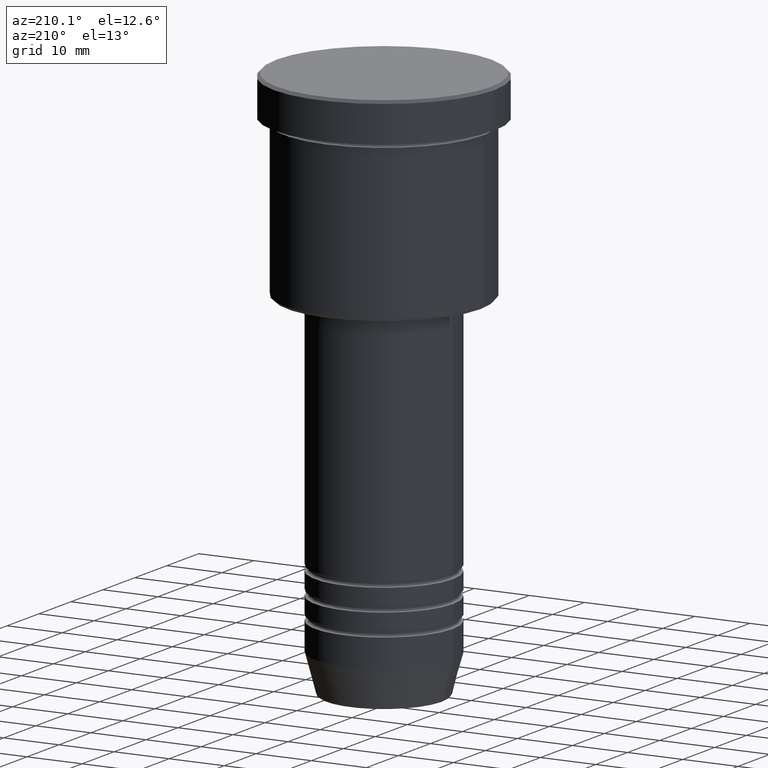
[diagram: clean part render]
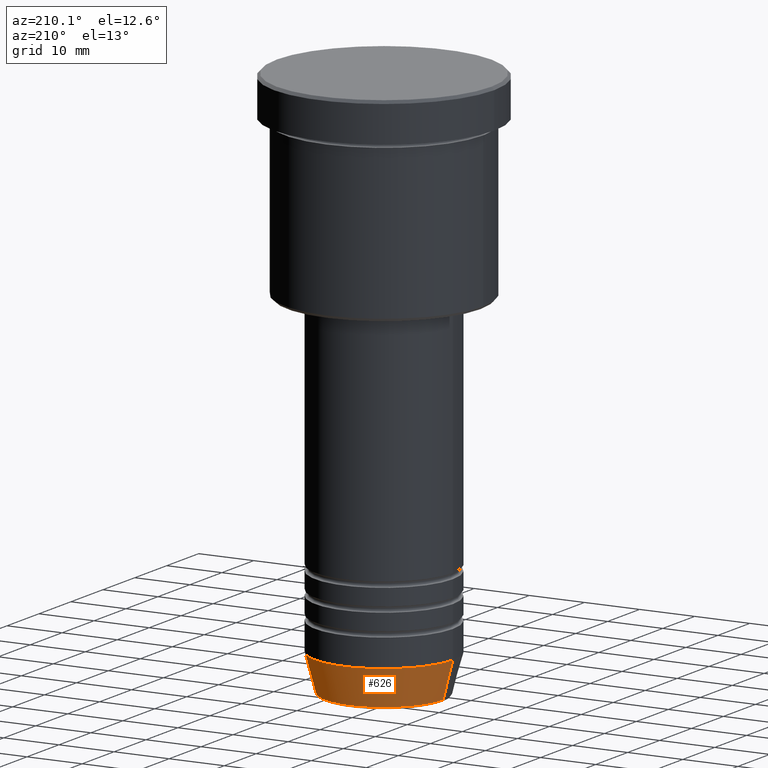
[diagram: same view with one face highlighted and labeled with its STEP entity id]
A machine part, auxiliary view. The second image highlights one B-rep face of the part: STEP entity #626.
In plain terms, the highlighted conical surface has half-angle 15 deg.
Its self-contained STEP definition (entity closure, byte-faithful):
#7 = CARTESIAN_POINT ( 'NONE',  ( 12.50000000000000000, 0.000000000000000000, -93.00000000000000000 ) ) ;
#27 = EDGE_CURVE ( 'NONE', #607, #849, #447, .T. ) ;
#39 = AXIS2_PLACEMENT_3D ( 'NONE', #350, #919, #1128 ) ;
#82 = DIRECTION ( 'NONE',  ( 1.000000000000000000, 0.000000000000000000, 0.000000000000000000 ) ) ;
#110 = CARTESIAN_POINT ( 'NONE',  ( 10.72365507213718416, 0.000000000000000000, -99.62940952255127058 ) ) ;
#131 = EDGE_LOOP ( 'NONE', ( #1062, #964, #832, #993 ) ) ;
#143 = CARTESIAN_POINT ( 'NONE',  ( -12.50000000000000000, 1.530808498934191521E-15, -93.00000000000000000 ) ) ;
#167 = DIRECTION ( 'NONE',  ( -0.000000000000000000, -0.000000000000000000, 1.000000000000000000 ) ) ;
#236 = DIRECTION ( 'NONE',  ( -0.000000000000000000, -0.000000000000000000, 1.000000000000000000 ) ) ;
#288 = VERTEX_POINT ( 'NONE', #110 ) ;
#314 = CARTESIAN_POINT ( 'NONE',  ( -10.72365507213718416, 1.422038742429749727E-15, -99.62940952255127058 ) ) ;
#350 = CARTESIAN_POINT ( 'NONE',  ( 0.000000000000000000, 0.000000000000000000, -93.00000000000000000 ) ) ;
#369 = EDGE_CURVE ( 'NONE', #926, #849, #929, .T. ) ;
#372 = DIRECTION ( 'NONE',  ( 0.2588190451025213501, 0.000000000000000000, 0.9659258262890680902 ) ) ;
#447 = CIRCLE ( 'NONE', #664, 12.50000000000000000 ) ;
#451 = VECTOR ( 'NONE', #372, 1000.000000000000000 ) ;
#506 = FACE_OUTER_BOUND ( 'NONE', #131, .T. ) ;
#566 = EDGE_CURVE ( 'NONE', #288, #926, #1105, .T. ) ;
#576 = DIRECTION ( 'NONE',  ( 1.000000000000000000, 0.000000000000000000, 0.000000000000000000 ) ) ;
#595 = LINE ( 'NONE', #7, #451 ) ;
#607 = VERTEX_POINT ( 'NONE', #877 ) ;
#614 = EDGE_CURVE ( 'NONE', #288, #607, #595, .T. ) ;
#626 = ADVANCED_FACE ( 'NONE', ( #506 ), #924, .T. ) ;
#664 = AXIS2_PLACEMENT_3D ( 'NONE', #796, #167, #82 ) ;
#796 = CARTESIAN_POINT ( 'NONE',  ( 0.000000000000000000, 0.000000000000000000, -93.00000000000000000 ) ) ;
#832 = ORIENTED_EDGE ( 'NONE', *, *, #27, .F. ) ;
#849 = VERTEX_POINT ( 'NONE', #143 ) ;
#851 = CARTESIAN_POINT ( 'NONE',  ( 0.000000000000000000, 0.000000000000000000, -99.62940952255127058 ) ) ;
#877 = CARTESIAN_POINT ( 'NONE',  ( 12.50000000000000000, 0.000000000000000000, -93.00000000000000000 ) ) ;
#919 = DIRECTION ( 'NONE',  ( -0.000000000000000000, -0.000000000000000000, 1.000000000000000000 ) ) ;
#924 = CONICAL_SURFACE ( 'NONE', #39, 12.50000000000000000, 0.2617993877991500740 ) ;
#926 = VERTEX_POINT ( 'NONE', #314 ) ;
#929 = LINE ( 'NONE', #937, #1177 ) ;
#937 = CARTESIAN_POINT ( 'NONE',  ( -12.50000000000000000, 1.530808498934191521E-15, -93.00000000000000000 ) ) ;
#964 = ORIENTED_EDGE ( 'NONE', *, *, #369, .T. ) ;
#993 = ORIENTED_EDGE ( 'NONE', *, *, #614, .F. ) ;
#1060 = AXIS2_PLACEMENT_3D ( 'NONE', #851, #236, #576 ) ;
#1062 = ORIENTED_EDGE ( 'NONE', *, *, #566, .T. ) ;
#1105 = CIRCLE ( 'NONE', #1060, 10.72365507213718416 ) ;
#1128 = DIRECTION ( 'NONE',  ( 1.000000000000000000, 0.000000000000000000, 0.000000000000000000 ) ) ;
#1132 = DIRECTION ( 'NONE',  ( -0.2588190451025213501, 3.169619151431772337E-17, 0.9659258262890680902 ) ) ;
#1177 = VECTOR ( 'NONE', #1132, 1000.000000000000000 ) ;